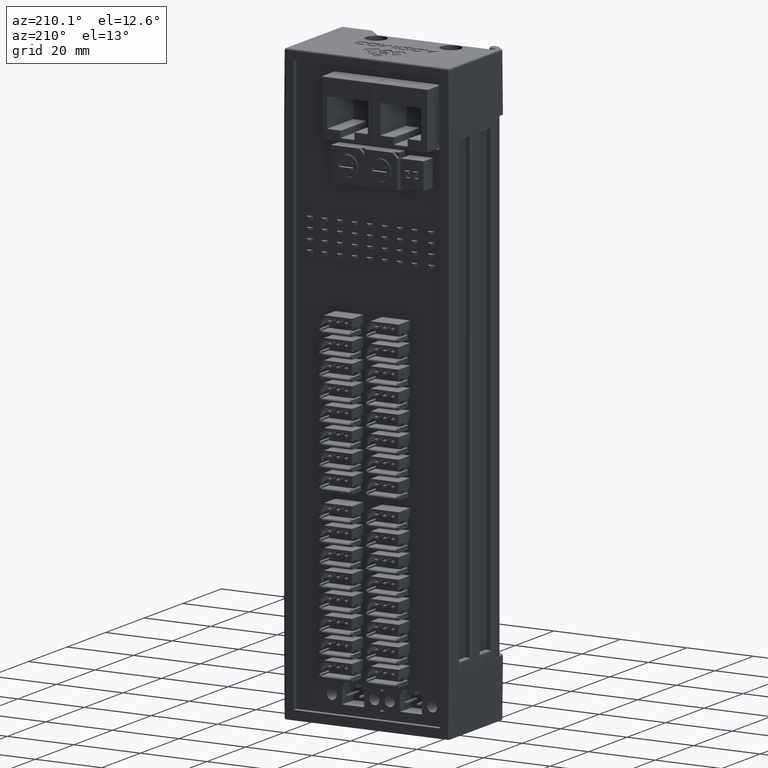
[diagram: clean part render]
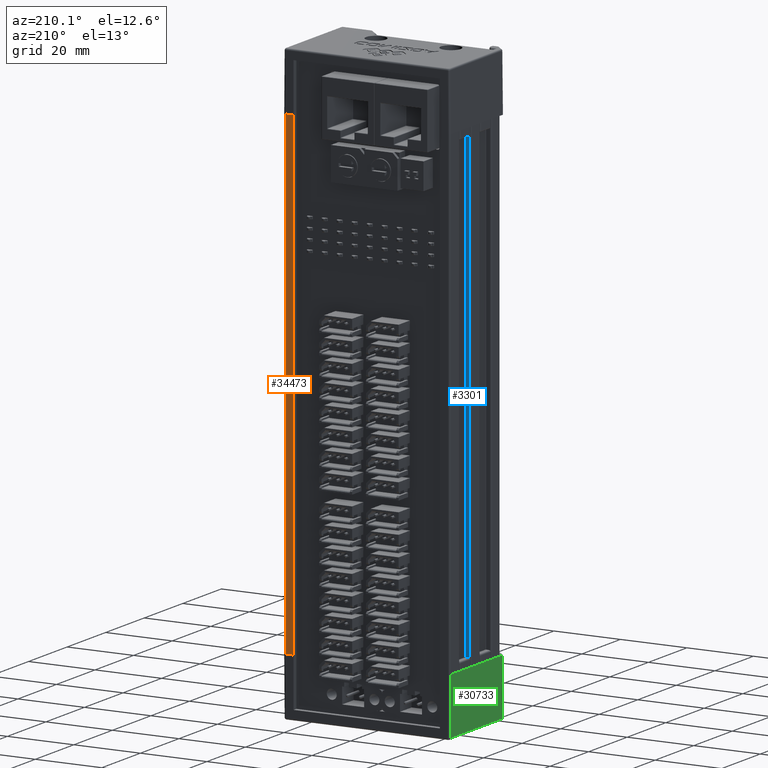
[diagram: same view with three faces highlighted in distinct colors, each labeled with its STEP entity id]
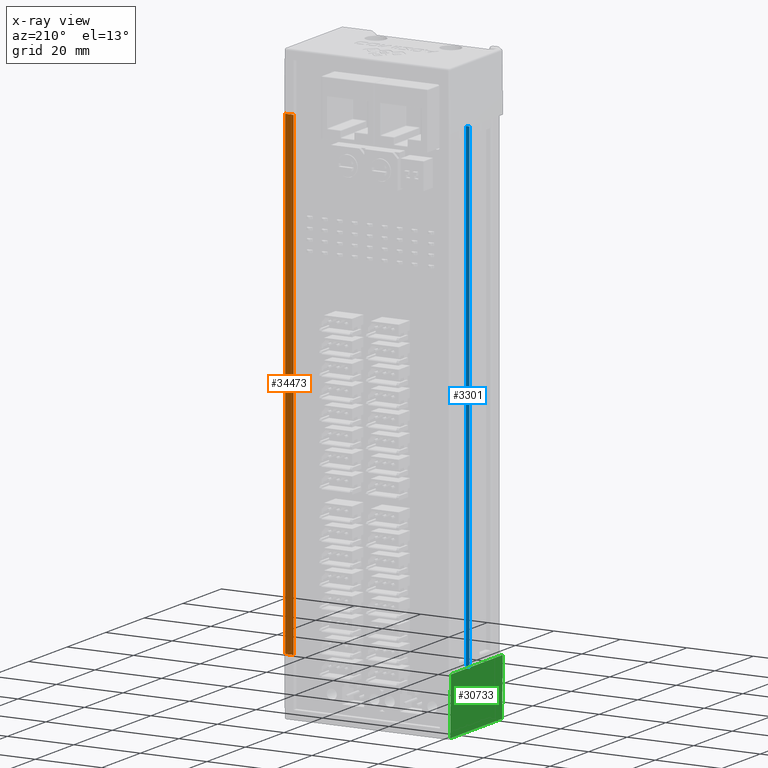
[diagram: x-ray of the same camera — body ghosted, the three highlighted faces saturated]
A machine part, auxiliary view with three faces highlighted in distinct colors.
The next image is the same camera in x-ray (body ghosted, the three faces saturated) — at least one of them is partly hidden behind the body in this view.
Their STEP definitions:

[orange] entity #34473 — the highlighted planar face has unit normal (0, 1, 0).
#4441 = VERTEX_POINT ( 'NONE', #14440 ) ;
#4715 = VERTEX_POINT ( 'NONE', #15462 ) ;
#4735 = VERTEX_POINT ( 'NONE', #15477 ) ;
#4769 = VERTEX_POINT ( 'NONE', #15502 ) ;
#14440 = CARTESIAN_POINT ( 'NONE',  ( 24.50000000000000000, 2.168404344971008900E-016, -109.4999999999999900 ) ) ;
#15462 = CARTESIAN_POINT ( 'NONE',  ( 22.00000000000000000, 0.0000000000000000000, 34.50000000000000000 ) ) ;
#15477 = CARTESIAN_POINT ( 'NONE',  ( 22.00000000000000000, 0.0000000000000000000, -109.4999999999999900 ) ) ;
#15502 = CARTESIAN_POINT ( 'NONE',  ( 24.50000000000000000, 2.168404344971008900E-016, 34.50000000000000000 ) ) ;
#17304 = EDGE_CURVE ( 'NONE', #4441, #4735, #26511, .T. ) ;
#17305 = EDGE_CURVE ( 'NONE', #4769, #4715, #26514, .T. ) ;
#17306 = EDGE_CURVE ( 'NONE', #4441, #4769, #26517, .T. ) ;
#17309 = EDGE_CURVE ( 'NONE', #4735, #4715, #26526, .T. ) ;
#20713 = ORIENTED_EDGE ( 'NONE', *, *, #17309, .T. ) ;
#20715 = ORIENTED_EDGE ( 'NONE', *, *, #17306, .F. ) ;
#20717 = ORIENTED_EDGE ( 'NONE', *, *, #17304, .T. ) ;
#20719 = ORIENTED_EDGE ( 'NONE', *, *, #17305, .F. ) ;
#26104 = VECTOR ( 'NONE', #26513, 1000.000000000000000 ) ;
#26105 = VECTOR ( 'NONE', #26516, 1000.000000000000000 ) ;
#26106 = VECTOR ( 'NONE', #26519, 1000.000000000000000 ) ;
#26109 = VECTOR ( 'NONE', #26528, 1000.000000000000000 ) ;
#26511 = LINE ( 'NONE', #26512, #26104 ) ;
#26512 = CARTESIAN_POINT ( 'NONE',  ( 24.50000000000000000, 0.0000000000000000000, -109.4999999999999900 ) ) ;
#26513 = DIRECTION ( 'NONE',  ( -1.000000000000000000, 0.0000000000000000000, 0.0000000000000000000 ) ) ;
#26514 = LINE ( 'NONE', #26515, #26105 ) ;
#26515 = CARTESIAN_POINT ( 'NONE',  ( 24.50000000000000000, 0.0000000000000000000, 34.50000000000000000 ) ) ;
#26516 = DIRECTION ( 'NONE',  ( -1.000000000000000000, 0.0000000000000000000, 0.0000000000000000000 ) ) ;
#26517 = LINE ( 'NONE', #26518, #26106 ) ;
#26518 = CARTESIAN_POINT ( 'NONE',  ( 24.50000000000000000, 2.168404344971008900E-016, -109.4999999999999900 ) ) ;
#26519 = DIRECTION ( 'NONE',  ( 0.0000000000000000000, 0.0000000000000000000, 1.000000000000000000 ) ) ;
#26526 = LINE ( 'NONE', #26527, #26109 ) ;
#26527 = CARTESIAN_POINT ( 'NONE',  ( 22.00000000000000000, 0.0000000000000000000, -109.4999999999999900 ) ) ;
#26528 = DIRECTION ( 'NONE',  ( 0.0000000000000000000, 0.0000000000000000000, 1.000000000000000000 ) ) ;
#34473 = ADVANCED_FACE ( 'NONE', ( #39253 ), #36604, .T. ) ;
#34708 = EDGE_LOOP ( 'NONE', ( #20719, #20715, #20717, #20713 ) ) ;
#36604 = PLANE ( 'NONE',  #39256 ) ;
#36605 = CARTESIAN_POINT ( 'NONE',  ( 24.50000000000000000, 0.0000000000000000000, -109.4999999999999900 ) ) ;
#36606 = DIRECTION ( 'NONE',  ( 0.0000000000000000000, 1.000000000000000000, -0.0000000000000000000 ) ) ;
#36607 = DIRECTION ( 'NONE',  ( 0.0000000000000000000, 0.0000000000000000000, 1.000000000000000000 ) ) ;
#39253 = FACE_OUTER_BOUND ( 'NONE', #34708, .T. ) ;
#39256 = AXIS2_PLACEMENT_3D ( 'NONE', #36605, #36606, #36607 ) ;

[blue] entity #3301 — the highlighted planar face has unit normal (0, 1, 0).
#3301 = ADVANCED_FACE ( 'NONE', ( #52427 ), #51700, .T. ) ;
#4336 = VERTEX_POINT ( 'NONE', #14370 ) ;
#4599 = VERTEX_POINT ( 'NONE', #15384 ) ;
#4667 = VERTEX_POINT ( 'NONE', #15431 ) ;
#4770 = VERTEX_POINT ( 'NONE', #15503 ) ;
#8384 = ORIENTED_EDGE ( 'NONE', *, *, #34530, .F. ) ;
#8387 = ORIENTED_EDGE ( 'NONE', *, *, #34524, .F. ) ;
#8388 = ORIENTED_EDGE ( 'NONE', *, *, #34531, .T. ) ;
#8391 = ORIENTED_EDGE ( 'NONE', *, *, #34525, .T. ) ;
#14370 = CARTESIAN_POINT ( 'NONE',  ( -23.40000000000000200, -11.00000000000000000, -109.4999999999999900 ) ) ;
#15384 = CARTESIAN_POINT ( 'NONE',  ( -24.50000000000000000, -11.00000000000000000, -109.4999999999999900 ) ) ;
#15431 = CARTESIAN_POINT ( 'NONE',  ( -24.50000000000000000, -11.00000000000000000, 34.50000000000000000 ) ) ;
#15503 = CARTESIAN_POINT ( 'NONE',  ( -23.40000000000000200, -11.00000000000000000, 34.50000000000000000 ) ) ;
#34524 = EDGE_CURVE ( 'NONE', #4770, #4667, #36761, .T. ) ;
#34525 = EDGE_CURVE ( 'NONE', #4599, #4667, #36764, .T. ) ;
#34530 = EDGE_CURVE ( 'NONE', #4336, #4770, #36781, .T. ) ;
#34531 = EDGE_CURVE ( 'NONE', #4336, #4599, #36785, .T. ) ;
#34717 = EDGE_LOOP ( 'NONE', ( #8387, #8384, #8388, #8391 ) ) ;
#36761 = LINE ( 'NONE', #36762, #39398 ) ;
#36762 = CARTESIAN_POINT ( 'NONE',  ( -23.40000000000000200, -11.00000000000000000, 34.50000000000000000 ) ) ;
#36763 = DIRECTION ( 'NONE',  ( -1.000000000000000000, 0.0000000000000000000, 0.0000000000000000000 ) ) ;
#36764 = LINE ( 'NONE', #36765, #39402 ) ;
#36765 = CARTESIAN_POINT ( 'NONE',  ( -24.50000000000000000, -11.00000000000000000, -109.4999999999999900 ) ) ;
#36766 = DIRECTION ( 'NONE',  ( 0.0000000000000000000, 0.0000000000000000000, 1.000000000000000000 ) ) ;
#36781 = LINE ( 'NONE', #36782, #39415 ) ;
#36782 = CARTESIAN_POINT ( 'NONE',  ( -23.40000000000000200, -11.00000000000000000, -109.4999999999999900 ) ) ;
#36784 = DIRECTION ( 'NONE',  ( 0.0000000000000000000, 0.0000000000000000000, 1.000000000000000000 ) ) ;
#36785 = LINE ( 'NONE', #36786, #39417 ) ;
#36786 = CARTESIAN_POINT ( 'NONE',  ( -23.40000000000000200, -11.00000000000000000, -109.4999999999999900 ) ) ;
#36787 = DIRECTION ( 'NONE',  ( -1.000000000000000000, 0.0000000000000000000, 0.0000000000000000000 ) ) ;
#39398 = VECTOR ( 'NONE', #36763, 1000.000000000000000 ) ;
#39402 = VECTOR ( 'NONE', #36766, 1000.000000000000000 ) ;
#39415 = VECTOR ( 'NONE', #36784, 1000.000000000000000 ) ;
#39417 = VECTOR ( 'NONE', #36787, 1000.000000000000000 ) ;
#51700 = PLANE ( 'NONE',  #52425 ) ;
#51701 = CARTESIAN_POINT ( 'NONE',  ( -23.40000000000000200, -11.00000000000000000, -109.4999999999999900 ) ) ;
#51702 = DIRECTION ( 'NONE',  ( 0.0000000000000000000, 1.000000000000000000, -0.0000000000000000000 ) ) ;
#51703 = DIRECTION ( 'NONE',  ( 0.0000000000000000000, 0.0000000000000000000, 1.000000000000000000 ) ) ;
#52425 = AXIS2_PLACEMENT_3D ( 'NONE', #51701, #51702, #51703 ) ;
#52427 = FACE_OUTER_BOUND ( 'NONE', #34717, .T. ) ;

[green] entity #30733 — the highlighted planar face has unit normal (-1, 0, -0.0087).
#986 = VERTEX_POINT ( 'NONE', #11422 ) ;
#992 = VERTEX_POINT ( 'NONE', #11426 ) ;
#3634 = VERTEX_POINT ( 'NONE', #14092 ) ;
#3637 = VERTEX_POINT ( 'NONE', #14095 ) ;
#7627 = EDGE_LOOP ( 'NONE', ( #25077, #25079, #25080, #25078, #25081, #25082, #25083, #25084 ) ) ;
#11422 = CARTESIAN_POINT ( 'NONE',  ( -24.85160516989397900, -27.33143395358985500, -17.00436326774995200 ) ) ;
#11426 = CARTESIAN_POINT ( 'NONE',  ( -24.85160516989420300, -0.5000000000000004400, -17.00436326774957900 ) ) ;
#14092 = CARTESIAN_POINT ( 'NONE',  ( -25.00000000000090200, -0.5000000000000000000, 0.0000000000000000000 ) ) ;
#14095 = CARTESIAN_POINT ( 'NONE',  ( -24.99999999999766200, -27.39290110480235200, 0.0000000000000000000 ) ) ;
#25077 = ORIENTED_EDGE ( 'NONE', *, *, #38050, .T. ) ;
#25078 = ORIENTED_EDGE ( 'NONE', *, *, #38040, .T. ) ;
#25079 = ORIENTED_EDGE ( 'NONE', *, *, #38053, .T. ) ;
#25080 = ORIENTED_EDGE ( 'NONE', *, *, #38039, .T. ) ;
#25081 = ORIENTED_EDGE ( 'NONE', *, *, #38041, .T. ) ;
#25082 = ORIENTED_EDGE ( 'NONE', *, *, #38044, .T. ) ;
#25083 = ORIENTED_EDGE ( 'NONE', *, *, #38045, .T. ) ;
#25084 = ORIENTED_EDGE ( 'NONE', *, *, #37645, .F. ) ;
#27996 = FACE_OUTER_BOUND ( 'NONE', #7627, .T. ) ;
#27997 = AXIS2_PLACEMENT_3D ( 'NONE', #29530, #29531, #29532 ) ;
#29529 = PLANE ( 'NONE',  #27997 ) ;
#29530 = CARTESIAN_POINT ( 'NONE',  ( -25.00000000000000000, 0.0000000000000000000, 0.0000000000000000000 ) ) ;
#29531 = DIRECTION ( 'NONE',  ( -0.9999619230641713100, 0.0000000000000000000, -0.008726535498373752500 ) ) ;
#29532 = DIRECTION ( 'NONE',  ( -0.008726535498373752500, 0.0000000000000000000, 0.9999619230641713100 ) ) ;
#30733 = ADVANCED_FACE ( 'NONE', ( #27996 ), #29529, .T. ) ;
#37645 = EDGE_CURVE ( 'NONE', #986, #992, #41855, .T. ) ;
#38039 = EDGE_CURVE ( 'NONE', #43959, #43960, #43231, .T. ) ;
#38040 = EDGE_CURVE ( 'NONE', #43960, #43961, #43234, .T. ) ;
#38041 = EDGE_CURVE ( 'NONE', #43961, #43962, #43237, .T. ) ;
#38044 = EDGE_CURVE ( 'NONE', #43962, #3634, #43248, .T. ) ;
#38045 = EDGE_CURVE ( 'NONE', #3634, #992, #43251, .T. ) ;
#38050 = EDGE_CURVE ( 'NONE', #986, #3637, #43267, .T. ) ;
#38053 = EDGE_CURVE ( 'NONE', #3637, #43959, #43276, .T. ) ;
#40574 = VECTOR ( 'NONE', #41857, 1000.000000000000000 ) ;
#40977 = VECTOR ( 'NONE', #43233, 1000.000000000000000 ) ;
#40978 = VECTOR ( 'NONE', #43236, 1000.000000000000000 ) ;
#40979 = VECTOR ( 'NONE', #43239, 1000.000000000000000 ) ;
#40983 = VECTOR ( 'NONE', #43250, 1000.000000000000000 ) ;
#40984 = VECTOR ( 'NONE', #43253, 1000.000000000000000 ) ;
#40990 = VECTOR ( 'NONE', #43269, 1000.000000000000100 ) ;
#40992 = VECTOR ( 'NONE', #43278, 1000.000000000000000 ) ;
#41855 = LINE ( 'NONE', #41856, #40574 ) ;
#41856 = CARTESIAN_POINT ( 'NONE',  ( -24.85160516989208200, -69.33836000014000000, -17.00436326774993000 ) ) ;
#41857 = DIRECTION ( 'NONE',  ( 0.0000000000000000000, 1.000000000000000000, 0.0000000000000000000 ) ) ;
#43231 = LINE ( 'NONE', #43232, #40977 ) ;
#43232 = CARTESIAN_POINT ( 'NONE',  ( -25.00000000000000000, 0.0000000000000000000, 0.0000000000000000000 ) ) ;
#43233 = DIRECTION ( 'NONE',  ( 0.0000000000000000000, 1.000000000000000000, -0.0000000000000000000 ) ) ;
#43234 = LINE ( 'NONE', #43235, #40978 ) ;
#43235 = CARTESIAN_POINT ( 'NONE',  ( -25.00000000000000000, 0.0000000000000000000, 0.0000000000000000000 ) ) ;
#43236 = DIRECTION ( 'NONE',  ( 0.0000000000000000000, 1.000000000000000000, -0.0000000000000000000 ) ) ;
#43237 = LINE ( 'NONE', #43238, #40979 ) ;
#43238 = CARTESIAN_POINT ( 'NONE',  ( -25.00000000000000000, 0.0000000000000000000, 0.0000000000000000000 ) ) ;
#43239 = DIRECTION ( 'NONE',  ( 0.0000000000000000000, 1.000000000000000000, -0.0000000000000000000 ) ) ;
#43248 = LINE ( 'NONE', #43249, #40983 ) ;
#43249 = CARTESIAN_POINT ( 'NONE',  ( -25.00000000000000000, 0.0000000000000000000, 0.0000000000000000000 ) ) ;
#43250 = DIRECTION ( 'NONE',  ( 0.0000000000000000000, 1.000000000000000000, -0.0000000000000000000 ) ) ;
#43251 = LINE ( 'NONE', #43252, #40984 ) ;
#43252 = CARTESIAN_POINT ( 'NONE',  ( -25.00000000000000000, -0.5000000000000000000, 0.0000000000000000000 ) ) ;
#43253 = DIRECTION ( 'NONE',  ( 0.008726535498373752500, -0.0000000000000000000, -0.9999619230641713100 ) ) ;
#43267 = LINE ( 'NONE', #43268, #40990 ) ;
#43268 = CARTESIAN_POINT ( 'NONE',  ( -24.85160516989631300, -27.33143395359000000, -17.00436326774997300 ) ) ;
#43269 = DIRECTION ( 'NONE',  ( -0.008726478489828794900, -0.003614625741950152100, 0.9999553905319537000 ) ) ;
#43276 = LINE ( 'NONE', #43277, #40992 ) ;
#43277 = CARTESIAN_POINT ( 'NONE',  ( -25.00000000000000000, 0.0000000000000000000, 0.0000000000000000000 ) ) ;
#43278 = DIRECTION ( 'NONE',  ( 0.0000000000000000000, 1.000000000000000000, -0.0000000000000000000 ) ) ;
#43361 = CARTESIAN_POINT ( 'NONE',  ( -25.00000000000021300, -21.05000000000000400, 0.0000000000000000000 ) ) ;
#43362 = CARTESIAN_POINT ( 'NONE',  ( -25.00000000000021300, -16.35000000000000500, 0.0000000000000000000 ) ) ;
#43363 = CARTESIAN_POINT ( 'NONE',  ( -25.00000000000021300, -10.44999999999999900, 0.0000000000000000000 ) ) ;
#43364 = CARTESIAN_POINT ( 'NONE',  ( -25.00000000000021300, -5.750000000000000000, 0.0000000000000000000 ) ) ;
#43959 = VERTEX_POINT ( 'NONE', #43361 ) ;
#43960 = VERTEX_POINT ( 'NONE', #43362 ) ;
#43961 = VERTEX_POINT ( 'NONE', #43363 ) ;
#43962 = VERTEX_POINT ( 'NONE', #43364 ) ;